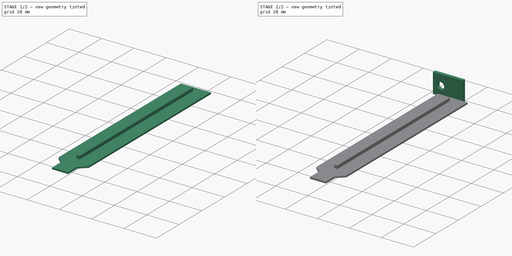
[diagram: build sequence overview — one tinted view per stage of 2, left to right]
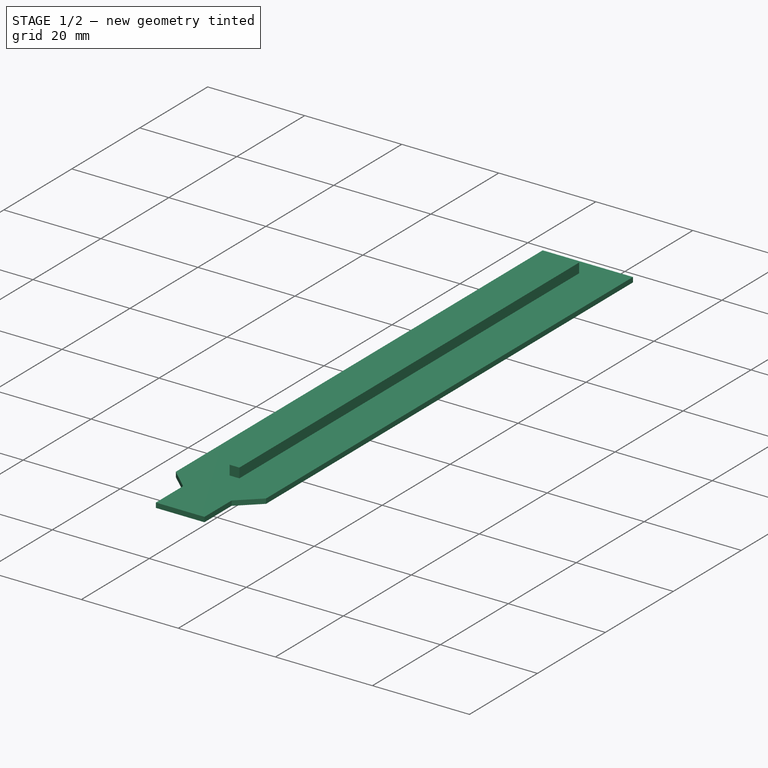
[diagram: stage 1 of 2 — iso view after this stage's code; geometry added in this stage tinted green]
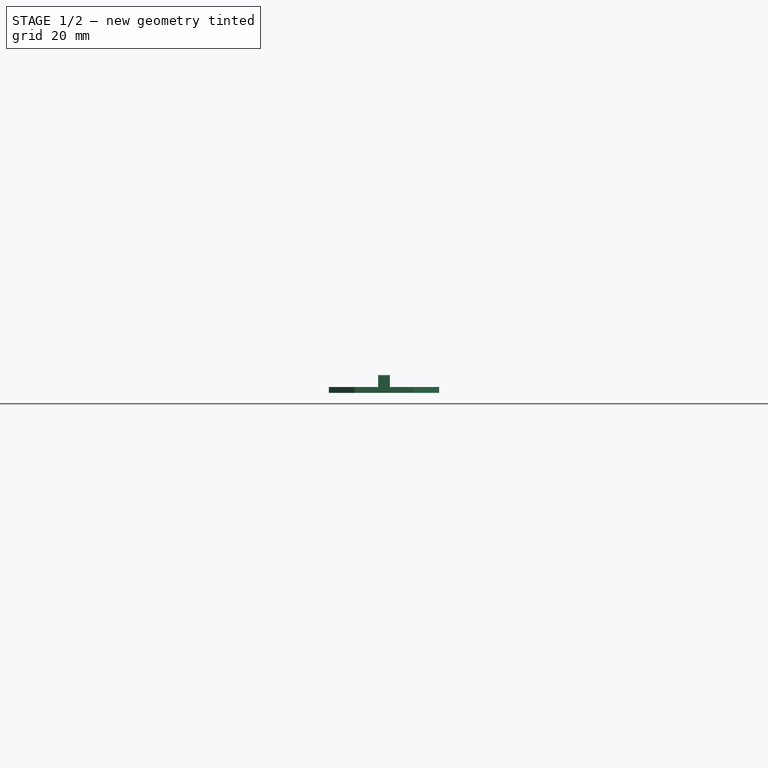
[diagram: stage 1 of 2 — front view after this stage's code; geometry added in this stage tinted green]
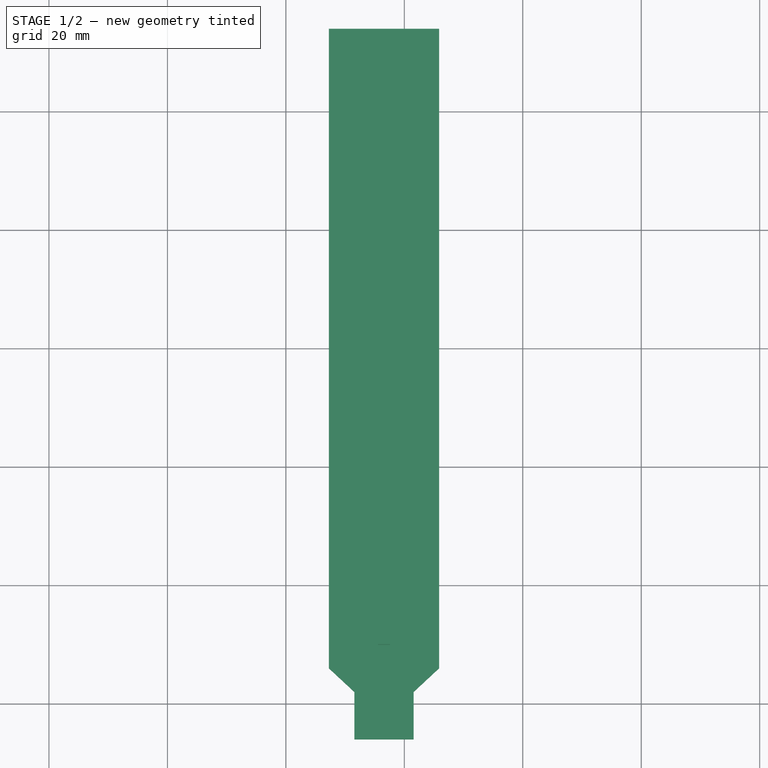
[diagram: stage 1 of 2 — top view after this stage's code; geometry added in this stage tinted green]
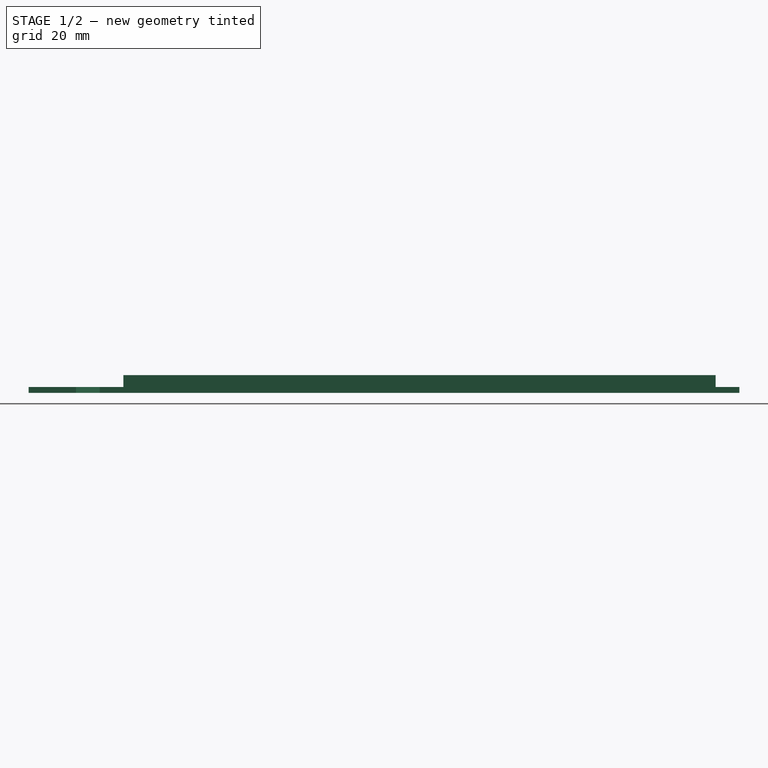
[diagram: stage 1 of 2 — right view after this stage's code; geometry added in this stage tinted green]
FCSTD DOCUMENT  (FreeCAD 0.19R23756 (Git))
Label: cover_v1_ohne_orig
License: All rights reserved
LicenseURL: http://en.wikipedia.org/wiki/All_rights_reserved
objects: Sketcher::SketchObject×3, PartDesign::Pad×3, PartDesign::Body×1
note: 10 computed .brp shape members not serialized (recipe doc carries the construction recipe); baked Part::Feature solids carry a one-line shape summary decoded from their .brp

FEATURE [Sketcher::SketchObject] Sketch
  FullyConstrained = false
  MapMode = 5
  Support = -> [XY_Plane]
  sketch-geometry (8):
    g0: LineSegment StartX=-12.7319 StartY=54 StartZ=0 EndX=5.86815 EndY=54 EndZ=0
    g1: LineSegment StartX=5.86815 StartY=54 StartZ=0 EndX=5.86815 EndY=-54 EndZ=0
    g2: LineSegment StartX=5.86815 StartY=-54 StartZ=0 EndX=1.56815 EndY=-58 EndZ=0
    g3: LineSegment StartX=1.56815 StartY=-58 StartZ=0 EndX=1.56815 EndY=-66 EndZ=0
    g4: LineSegment StartX=1.56815 StartY=-66 StartZ=0 EndX=-8.43185 EndY=-66 EndZ=0
    g5: LineSegment StartX=-8.43185 StartY=-66 StartZ=0 EndX=-8.43185 EndY=-58 EndZ=0
    g6: LineSegment StartX=-8.43185 StartY=-58 StartZ=0 EndX=-12.7319 EndY=-54 EndZ=0
    g7: LineSegment StartX=-12.7319 StartY=-54 StartZ=0 EndX=-12.7319 EndY=54 EndZ=0
  constraints (8):
    c: Coincident(g0,g1)
    c: Coincident(g1,g2)
    c: Coincident(g2,g3)
    c: Coincident(g3,g4)
    c: Coincident(g4,g5)
    c: Coincident(g5,g6)
    c: Coincident(g6,g7)
    c: Coincident(g7,g0)
FEATURE [PartDesign::Pad] Pad
  Direction = (1,1,1)
  Length = 1
  Length2 = 100
  Midplane = true
  Profile = -> Sketch
  Type = 0
FEATURE [Sketcher::SketchObject] Sketch001
  FullyConstrained = false
  MapMode = 5
  Placement = pos=(0,0,0.5) rot=(0,0,1;0rad)
  Support = -> [Pad]
  sketch-geometry (4):
    g0: LineSegment StartX=-4.43185 StartY=50 StartZ=0 EndX=-2.43185 EndY=50 EndZ=0
    g1: LineSegment StartX=-2.43185 StartY=50 StartZ=0 EndX=-2.43185 EndY=-50 EndZ=0
    g2: LineSegment StartX=-2.43185 StartY=-50 StartZ=0 EndX=-4.43185 EndY=-50 EndZ=0
    g3: LineSegment StartX=-4.43185 StartY=-50 StartZ=0 EndX=-4.43185 EndY=50 EndZ=0
  constraints (8):
    c: Coincident(g0,g1)
    c: Coincident(g1,g2)
    c: Coincident(g2,g3)
    c: Coincident(g3,g0)
    c: Horizontal(g0)
    c: Horizontal(g2)
    c: Vertical(g1)
    c: Vertical(g3)
FEATURE [PartDesign::Pad] Pad001
  BaseFeature = -> Pad
  Direction = (1,1,1)
  Length = 2
  Length2 = 100
  Profile = -> Sketch001
  Type = 0
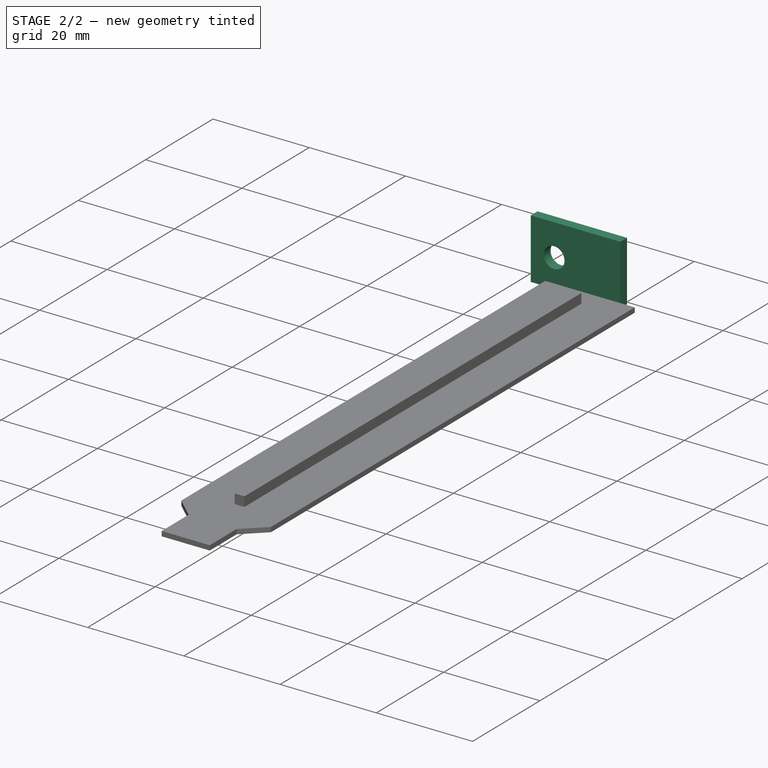
[diagram: stage 2 of 2 — iso view after this stage's code; geometry added in this stage tinted green]
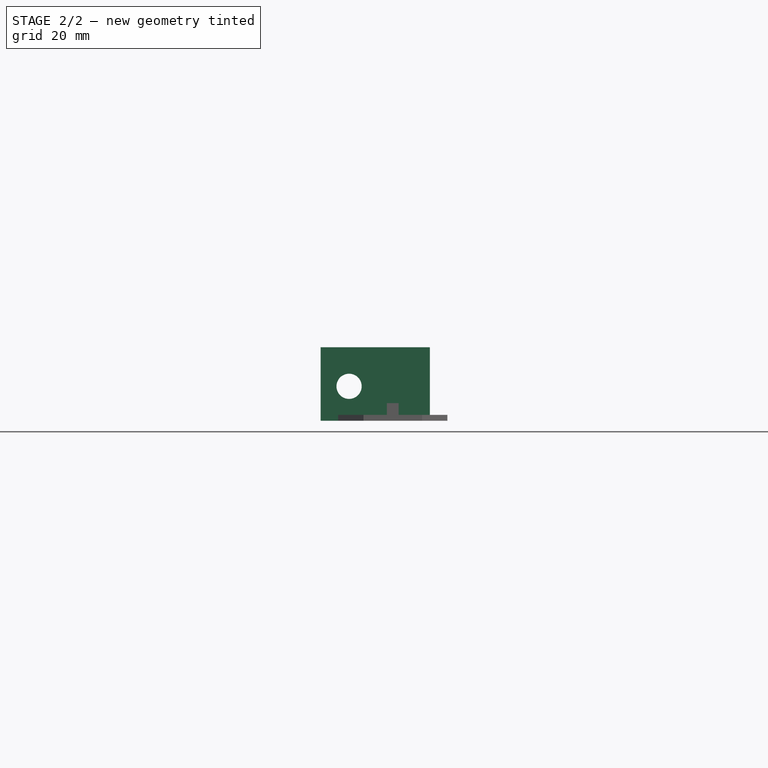
[diagram: stage 2 of 2 — front view after this stage's code; geometry added in this stage tinted green]
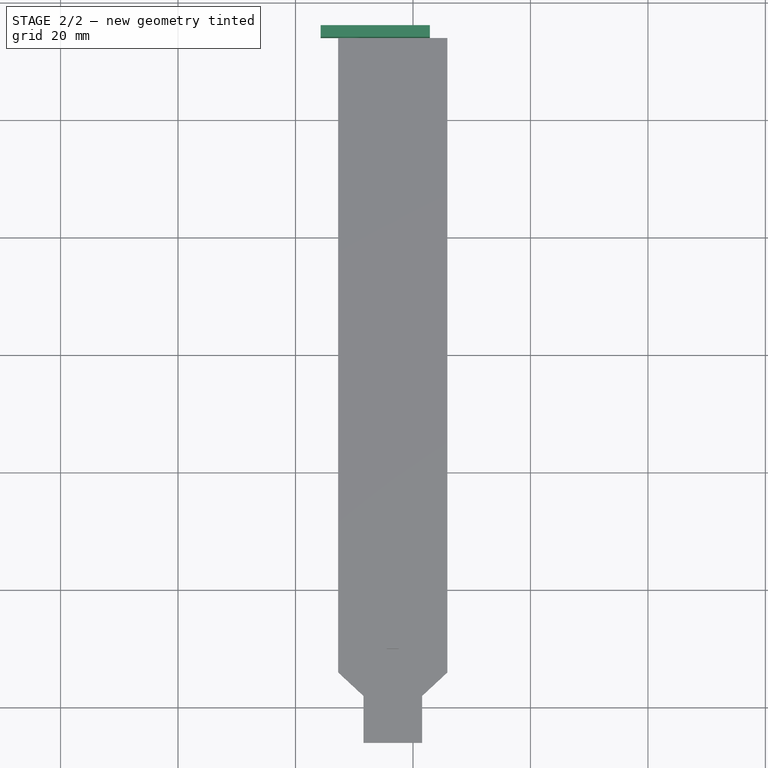
[diagram: stage 2 of 2 — top view after this stage's code; geometry added in this stage tinted green]
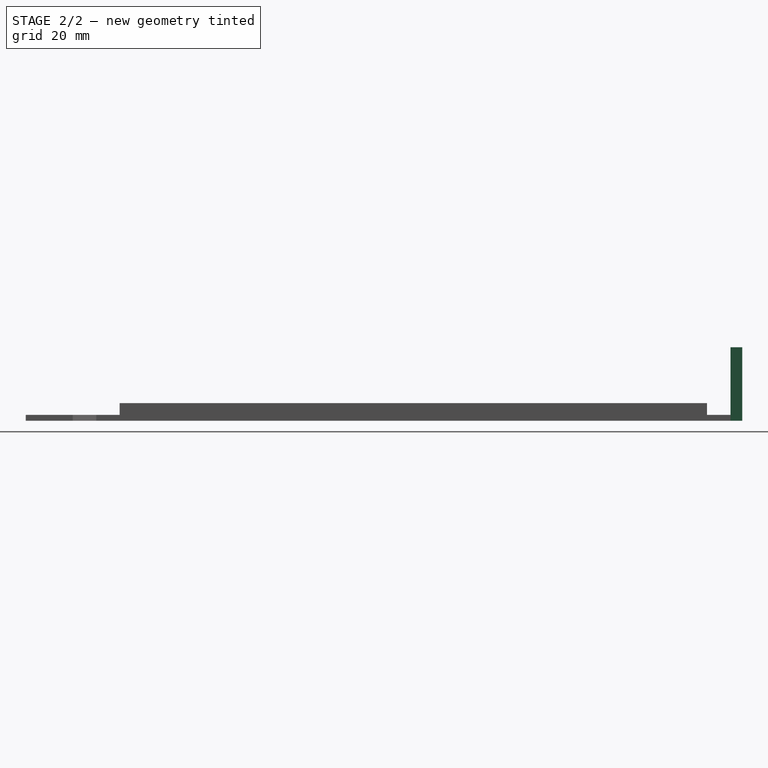
[diagram: stage 2 of 2 — right view after this stage's code; geometry added in this stage tinted green]
FEATURE [Sketcher::SketchObject] Sketch002
  FullyConstrained = false
  MapMode = 5
  Placement = pos=(0,54,0) rot=(0,0.707107,0.707107;3.14159rad)
  Support = -> [Pad001]
  sketch-geometry (5):
    g0: LineSegment StartX=-2.86815 StartY=12 StartZ=0 EndX=15.7319 EndY=12 EndZ=0
    g1: LineSegment StartX=15.7319 StartY=12 StartZ=0 EndX=15.7319 EndY=-0.5 EndZ=0
    g2: LineSegment StartX=15.7319 StartY=-0.5 StartZ=0 EndX=-2.86815 EndY=-0.5 EndZ=0
    g3: LineSegment StartX=-2.86815 StartY=-0.5 StartZ=0 EndX=-2.86815 EndY=12 EndZ=0
    g4: Circle CenterX=10.8769 CenterY=5.355 CenterZ=0 NormalX=0 NormalY=0 NormalZ=1 AngleXU=0 Radius=2.145
  constraints (8):
    c: Coincident(g0,g1)
    c: Coincident(g1,g2)
    c: Coincident(g2,g3)
    c: Coincident(g3,g0)
    c: Horizontal(g0)
    c: Horizontal(g2)
    c: Vertical(g1)
    c: Vertical(g3)
FEATURE [PartDesign::Pad] Pad002
  BaseFeature = -> Pad001
  Direction = (1,1,1)
  Length = 2
  Length2 = 100
  Profile = -> Sketch002
  Type = 0
FEATURE [PartDesign::Body] Body
  Group = -> [Sketch,Pad,Sketch001,Pad001,Sketch002,Pad002]
  Origin = -> Origin
  Tip = -> Pad002
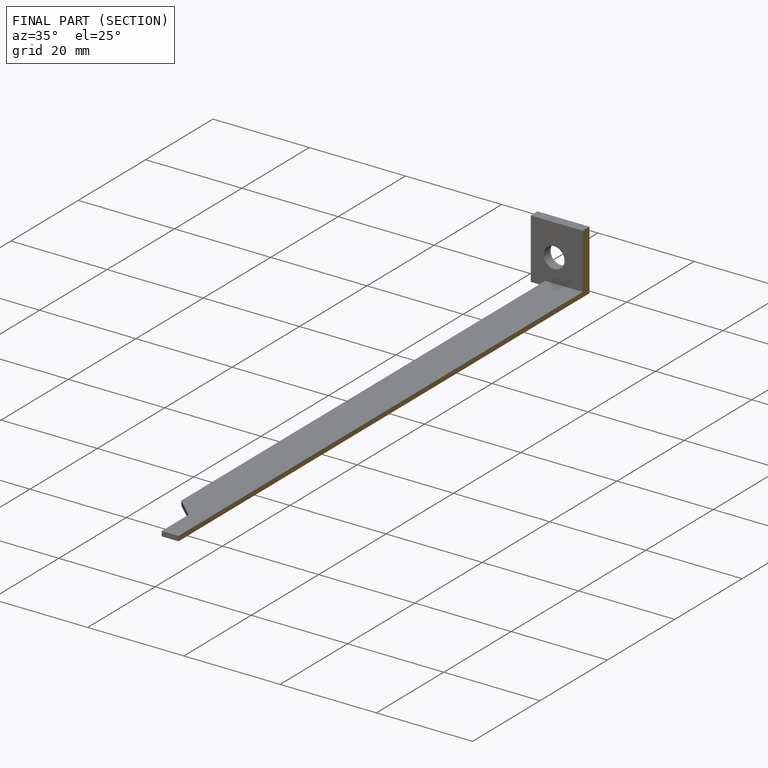
[diagram: finished part — half-section view (interior)]
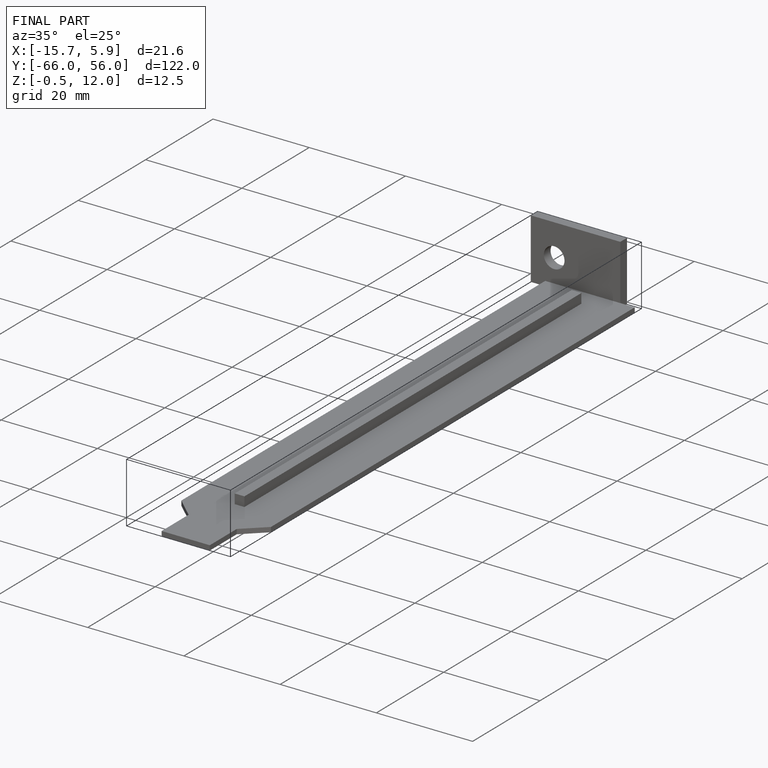
[diagram: finished part — iso view with bounding-box wireframe]
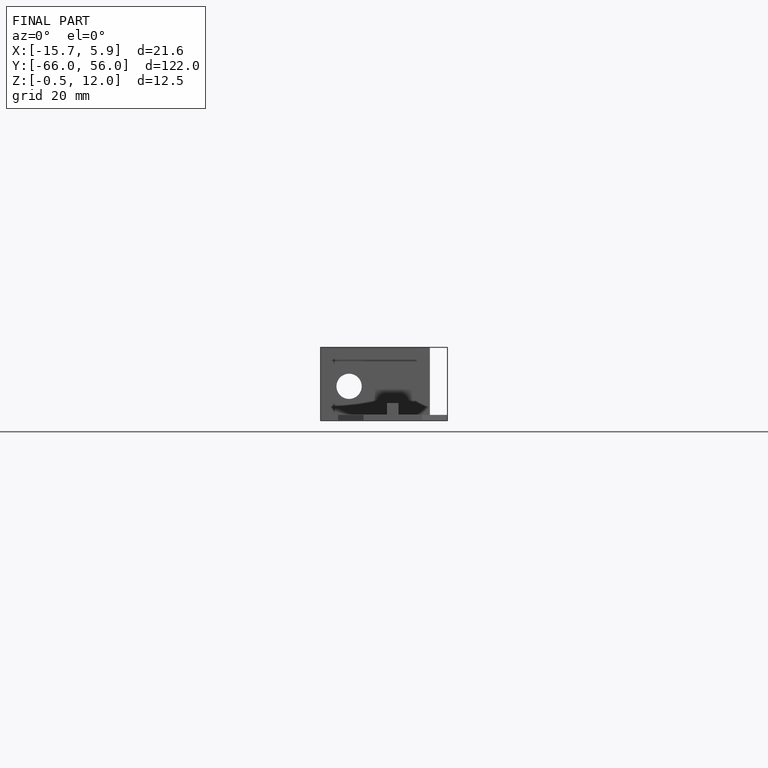
[diagram: finished part — front view with bounding-box wireframe]
